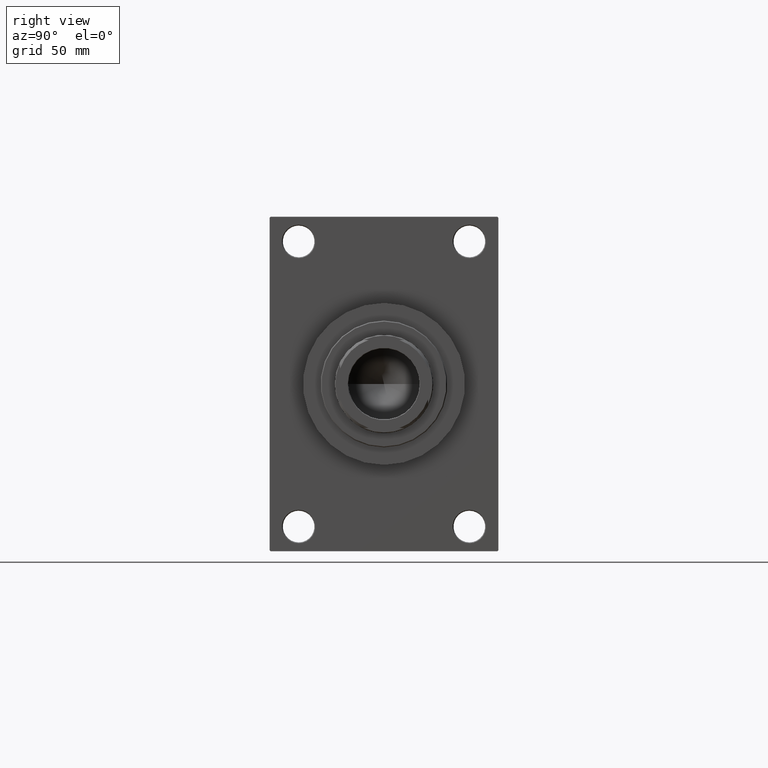
[diagram: clean part render]
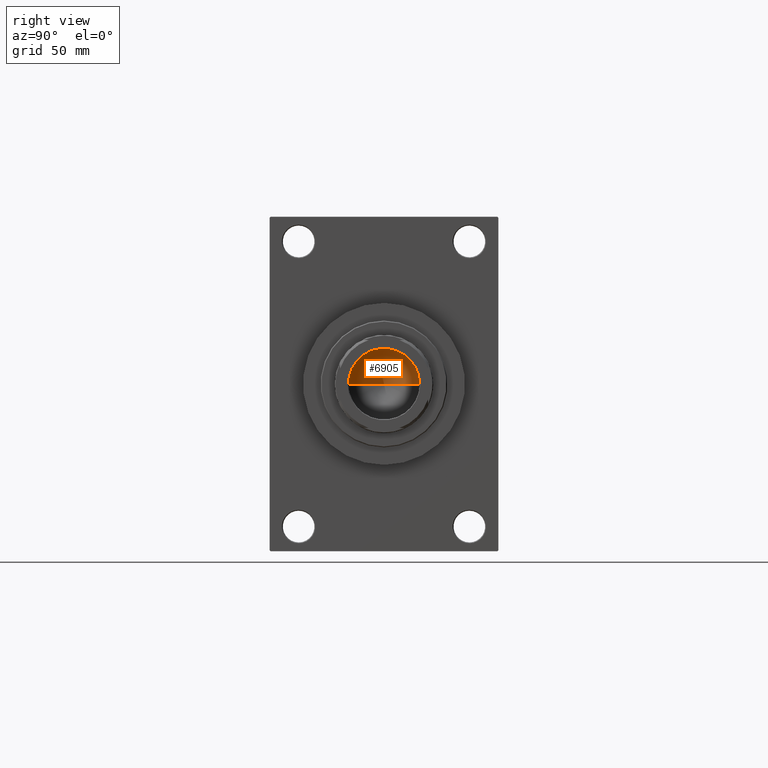
[diagram: same view with one face highlighted and labeled with its STEP entity id]
A machine part, right view. The second image highlights one B-rep face of the part: STEP entity #6905.
In plain terms, the highlighted conical surface has half-angle 59 deg.
Its self-contained STEP definition (entity closure, byte-faithful):
#4322 = VECTOR ( 'NONE', #44574, 1000.000000000000000 ) ;
#6270 = VERTEX_POINT ( 'NONE', #31791 ) ;
#6905 = ADVANCED_FACE ( 'NONE', ( #44168 ), #42019, .F. ) ;
#7204 = VERTEX_POINT ( 'NONE', #30534 ) ;
#10641 = EDGE_LOOP ( 'NONE', ( #46154, #17009, #20213 ) ) ;
#14934 = DIRECTION ( 'NONE',  ( 1.000000000000000000, 0.000000000000000000, 0.000000000000000000 ) ) ;
#16534 = LINE ( 'NONE', #38257, #40195 ) ;
#17009 = ORIENTED_EDGE ( 'NONE', *, *, #21503, .T. ) ;
#19660 = DIRECTION ( 'NONE',  ( 0.8571673007021112234, 0.000000000000000000, 0.5150380749100560429 ) ) ;
#20213 = ORIENTED_EDGE ( 'NONE', *, *, #31388, .T. ) ;
#21503 = EDGE_CURVE ( 'NONE', #37488, #6270, #30054, .T. ) ;
#25330 = CARTESIAN_POINT ( 'NONE',  ( 0.000000000000000000, 0.000000000000000000, 220.0000000000000284 ) ) ;
#26668 = CARTESIAN_POINT ( 'NONE',  ( -20.24999999999998934, 2.479909768273389117E-15, 220.0000000000000284 ) ) ;
#28799 = CARTESIAN_POINT ( 'NONE',  ( 0.000000000000000000, 0.000000000000000000, 220.0000000000000284 ) ) ;
#30054 = LINE ( 'NONE', #26668, #4322 ) ;
#30534 = CARTESIAN_POINT ( 'NONE',  ( 20.24999999999998934, 0.000000000000000000, 220.0000000000000284 ) ) ;
#30691 = AXIS2_PLACEMENT_3D ( 'NONE', #28799, #36997, #32428 ) ;
#31388 = EDGE_CURVE ( 'NONE', #6270, #7204, #42316, .T. ) ;
#31791 = CARTESIAN_POINT ( 'NONE',  ( -20.24999999999998934, 2.479909768273389117E-15, 220.0000000000000284 ) ) ;
#32428 = DIRECTION ( 'NONE',  ( 1.000000000000000000, 0.000000000000000000, 0.000000000000000000 ) ) ;
#36997 = DIRECTION ( 'NONE',  ( -0.000000000000000000, -0.000000000000000000, 1.000000000000000000 ) ) ;
#37488 = VERTEX_POINT ( 'NONE', #43580 ) ;
#37637 = EDGE_CURVE ( 'NONE', #37488, #7204, #16534, .T. ) ;
#38257 = CARTESIAN_POINT ( 'NONE',  ( 20.24999999999998934, 0.000000000000000000, 220.0000000000000284 ) ) ;
#40195 = VECTOR ( 'NONE', #19660, 1000.000000000000000 ) ;
#40530 = DIRECTION ( 'NONE',  ( -0.000000000000000000, -0.000000000000000000, 1.000000000000000000 ) ) ;
#42019 = CONICAL_SURFACE ( 'NONE', #45894, 20.24999999999998934, 1.029744258676652313 ) ;
#42316 = CIRCLE ( 'NONE', #30691, 20.24999999999998934 ) ;
#43580 = CARTESIAN_POINT ( 'NONE',  ( -1.584115414415908206E-14, 0.000000000000000000, 207.8325724646918786 ) ) ;
#44168 = FACE_OUTER_BOUND ( 'NONE', #10641, .T. ) ;
#44574 = DIRECTION ( 'NONE',  ( -0.8571673007021112234, 1.049727191138617340E-16, 0.5150380749100560429 ) ) ;
#45894 = AXIS2_PLACEMENT_3D ( 'NONE', #25330, #40530, #14934 ) ;
#46154 = ORIENTED_EDGE ( 'NONE', *, *, #37637, .F. ) ;